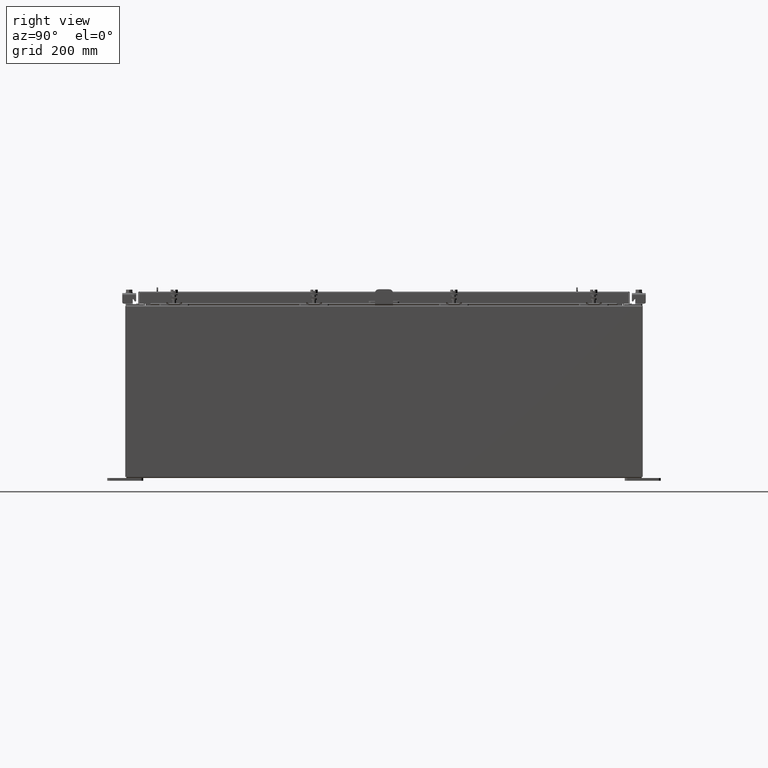
[diagram: clean part render]
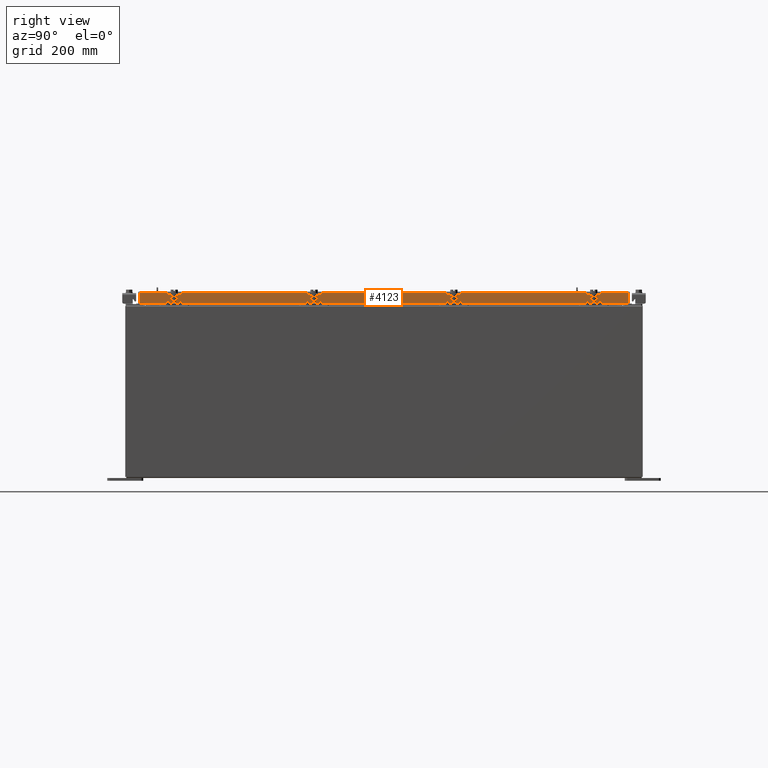
[diagram: same view with one face highlighted and labeled with its STEP entity id]
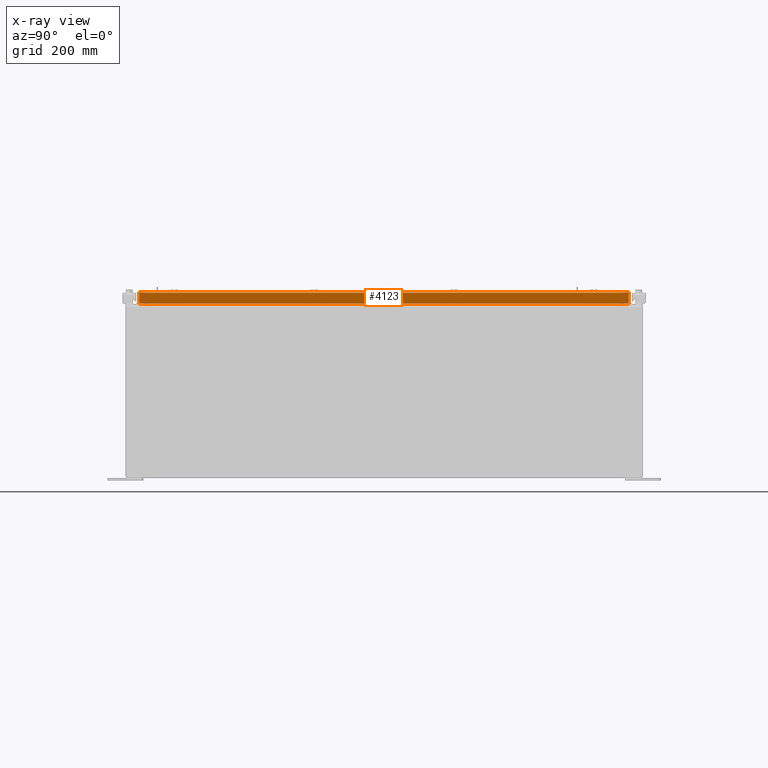
[diagram: x-ray of the same camera — body ghosted, the highlighted face saturated]
A machine part, right view. The second image highlights one B-rep face of the part: STEP entity #4123.
The next image is the same camera in x-ray: the body ghosted, the highlighted face saturated — about 0% of this face is hidden behind the body in this view.
In plain terms, the highlighted planar face has unit normal (1, 0, 0).
Its self-contained STEP definition (entity closure, byte-faithful):
#439 = VERTEX_POINT ( 'NONE', #12846 ) ;
#739 = CARTESIAN_POINT ( 'NONE',  ( 14.07799999999999800, 17.00515786437626500, 1.586914022634634500E-013 ) ) ;
#786 = LINE ( 'NONE', #5638, #9618 ) ;
#1413 = AXIS2_PLACEMENT_3D ( 'NONE', #20871, #20790, #20743 ) ;
#1504 = CARTESIAN_POINT ( 'NONE',  ( 14.07799999999999800, -17.00515786437627200, -0.07469999999999978000 ) ) ;
#2437 = ORIENTED_EDGE ( 'NONE', *, *, #18403, .F. ) ;
#2963 = ORIENTED_EDGE ( 'NONE', *, *, #3050, .F. ) ;
#3050 = EDGE_CURVE ( 'NONE', #4483, #439, #786, .T. ) ;
#4123 = ADVANCED_FACE ( 'NONE', ( #15752 ), #21220, .T. ) ;
#4219 = VERTEX_POINT ( 'NONE', #18622 ) ;
#4483 = VERTEX_POINT ( 'NONE', #9774 ) ;
#4694 = LINE ( 'NONE', #11951, #8894 ) ;
#4974 = VERTEX_POINT ( 'NONE', #11892 ) ;
#5409 = EDGE_LOOP ( 'NONE', ( #19411, #2963, #2437, #10516, #13637, #16469 ) ) ;
#5638 = CARTESIAN_POINT ( 'NONE',  ( 14.07799999999999900, -17.09400000000000100, -0.8499999999999996400 ) ) ;
#7149 = DIRECTION ( 'NONE',  ( 0.0000000000000000000, -1.000000000000000000, 0.0000000000000000000 ) ) ;
#7352 = LINE ( 'NONE', #8939, #16034 ) ;
#7763 = VECTOR ( 'NONE', #8582, 39.37007874015748100 ) ;
#8481 = DIRECTION ( 'NONE',  ( 0.0000000000000000000, -1.000000000000000000, 0.0000000000000000000 ) ) ;
#8582 = DIRECTION ( 'NONE',  ( -2.818880942772360500E-015, -6.982962677686269100E-015, 1.000000000000000000 ) ) ;
#8894 = VECTOR ( 'NONE', #20572, 39.37007874015748100 ) ;
#8939 = CARTESIAN_POINT ( 'NONE',  ( 14.07799999999999900, -17.09400000000000100, -0.8499999999999996400 ) ) ;
#9618 = VECTOR ( 'NONE', #19475, 39.37007874015748100 ) ;
#9774 = CARTESIAN_POINT ( 'NONE',  ( 14.07799999999999600, -16.25515786437626900, -0.8500000000000005300 ) ) ;
#10516 = ORIENTED_EDGE ( 'NONE', *, *, #14970, .F. ) ;
#11892 = CARTESIAN_POINT ( 'NONE',  ( 14.07799999999999800, -17.00515786437627200, -0.08770000000000007000 ) ) ;
#11951 = CARTESIAN_POINT ( 'NONE',  ( 14.07799999999999600, 16.25515786437627200, -0.8500000000000005300 ) ) ;
#12425 = LINE ( 'NONE', #1504, #7763 ) ;
#12846 = CARTESIAN_POINT ( 'NONE',  ( 14.07799999999999900, -17.00515786437626900, -0.8499999999999996400 ) ) ;
#13637 = ORIENTED_EDGE ( 'NONE', *, *, #22163, .T. ) ;
#13771 = VERTEX_POINT ( 'NONE', #19264 ) ;
#14097 = CARTESIAN_POINT ( 'NONE',  ( 14.07799999999999900, 17.00515786437627200, -0.8499999999999996400 ) ) ;
#14970 = EDGE_CURVE ( 'NONE', #21374, #13771, #7352, .T. ) ;
#15752 = FACE_OUTER_BOUND ( 'NONE', #5409, .T. ) ;
#16034 = VECTOR ( 'NONE', #7149, 39.37007874015748100 ) ;
#16469 = ORIENTED_EDGE ( 'NONE', *, *, #18996, .T. ) ;
#17403 = VECTOR ( 'NONE', #19859, 39.37007874015748100 ) ;
#17778 = VECTOR ( 'NONE', #8481, 39.37007874015748100 ) ;
#17941 = LINE ( 'NONE', #739, #17403 ) ;
#18321 = LINE ( 'NONE', #20618, #17778 ) ;
#18403 = EDGE_CURVE ( 'NONE', #13771, #4483, #4694, .T. ) ;
#18433 = EDGE_CURVE ( 'NONE', #439, #4974, #12425, .T. ) ;
#18622 = CARTESIAN_POINT ( 'NONE',  ( 14.07799999999999800, 17.00515786437626200, -0.08770000000000007000 ) ) ;
#18996 = EDGE_CURVE ( 'NONE', #4219, #4974, #18321, .T. ) ;
#19264 = CARTESIAN_POINT ( 'NONE',  ( 14.07799999999999600, 16.25515786437626900, -0.8500000000000005300 ) ) ;
#19411 = ORIENTED_EDGE ( 'NONE', *, *, #18433, .F. ) ;
#19475 = DIRECTION ( 'NONE',  ( 0.0000000000000000000, -1.000000000000000000, 0.0000000000000000000 ) ) ;
#19859 = DIRECTION ( 'NONE',  ( -2.818880942772360500E-015, -6.982962677686269100E-015, 1.000000000000000000 ) ) ;
#20572 = DIRECTION ( 'NONE',  ( 0.0000000000000000000, -1.000000000000000000, 0.0000000000000000000 ) ) ;
#20618 = CARTESIAN_POINT ( 'NONE',  ( 14.07799999999999800, 0.0000000000000000000, -0.08770000000000007000 ) ) ;
#20743 = DIRECTION ( 'NONE',  ( 2.818880942772360100E-015, 0.0000000000000000000, -1.000000000000000000 ) ) ;
#20790 = DIRECTION ( 'NONE',  ( 1.000000000000000000, 0.0000000000000000000, 2.818880942772360100E-015 ) ) ;
#20871 = CARTESIAN_POINT ( 'NONE',  ( 14.07799999999999800, 0.0000000000000000000, 3.994501956836086200E-014 ) ) ;
#21220 = PLANE ( 'NONE',  #1413 ) ;
#21374 = VERTEX_POINT ( 'NONE', #14097 ) ;
#22163 = EDGE_CURVE ( 'NONE', #21374, #4219, #17941, .T. ) ;